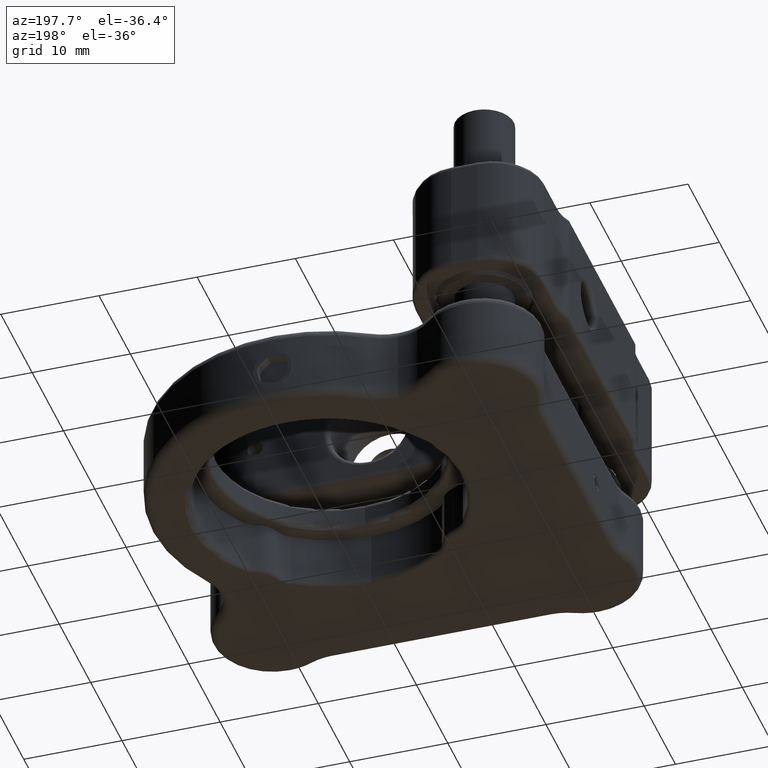
[diagram: clean part render]
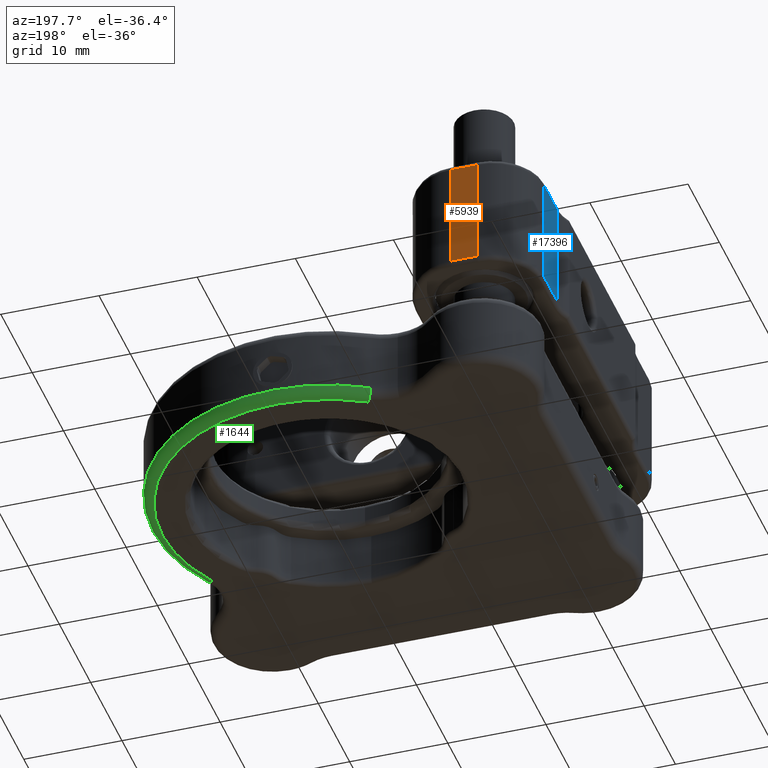
[diagram: same view with three faces highlighted in distinct colors, each labeled with its STEP entity id]
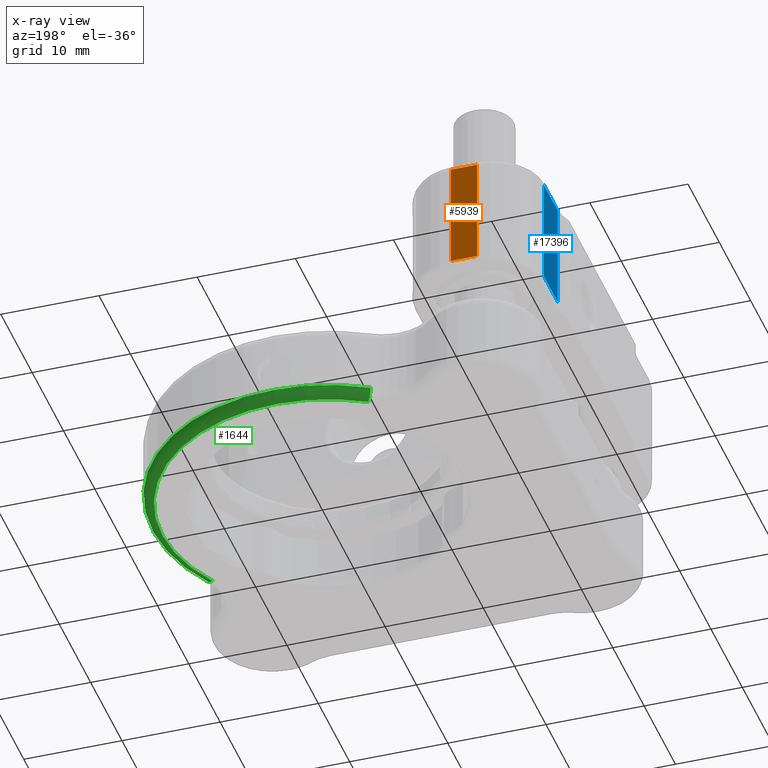
[diagram: x-ray of the same camera — body ghosted, the three highlighted faces saturated]
A machine part, auxiliary view with three faces highlighted in distinct colors.
The next image is the same camera in x-ray (body ghosted, the three faces saturated) — at least one of them is partly hidden behind the body in this view.
Their STEP definitions:

[orange] entity #5939 — the highlighted planar face has unit normal (0, 1, -0).
#704 = DIRECTION ( 'NONE',  ( -1.533343436975556800E-017, 8.970190802864523500E-017, 1.000000000000000000 ) ) ;
#1254 = EDGE_CURVE ( 'NONE', #5348, #8624, #12071, .T. ) ;
#1510 = AXIS2_PLACEMENT_3D ( 'NONE', #16657, #6499, #18357 ) ;
#2843 = CARTESIAN_POINT ( 'NONE',  ( -1.322875655532277600, 37.50000000000001400, -5.500000000000001800 ) ) ;
#2976 = ORIENTED_EDGE ( 'NONE', *, *, #3451, .T. ) ;
#3149 = LINE ( 'NONE', #7468, #20123 ) ;
#3451 = EDGE_CURVE ( 'NONE', #16374, #11230, #18480, .T. ) ;
#3831 = EDGE_LOOP ( 'NONE', ( #7144, #20804, #10669, #2976 ) ) ;
#4483 = DIRECTION ( 'NONE',  ( 1.000000000000000000, -4.228827026381210000E-016, 1.367518413995532800E-032 ) ) ;
#5192 = FACE_OUTER_BOUND ( 'NONE', #3831, .T. ) ;
#5348 = VERTEX_POINT ( 'NONE', #6132 ) ;
#5939 = ADVANCED_FACE ( 'NONE', ( #5192 ), #6424, .T. ) ;
#6132 = CARTESIAN_POINT ( 'NONE',  ( -1.322875655532277600, 37.50000000000001400, 5.499999999999998200 ) ) ;
#6424 = PLANE ( 'NONE',  #1510 ) ;
#6499 = DIRECTION ( 'NONE',  ( 4.228827026381210000E-016, 1.000000000000000000, -4.632058481800215900E-017 ) ) ;
#7144 = ORIENTED_EDGE ( 'NONE', *, *, #7942, .T. ) ;
#7468 = CARTESIAN_POINT ( 'NONE',  ( -1.322875655532277600, 37.50000000000001400, 5.999999999999998200 ) ) ;
#7555 = VECTOR ( 'NONE', #4483, 1000.000000000000000 ) ;
#7942 = EDGE_CURVE ( 'NONE', #11230, #5348, #3149, .T. ) ;
#7965 = CARTESIAN_POINT ( 'NONE',  ( 1.322875655532281600, 37.50000000000001400, -5.500000000000001800 ) ) ;
#8624 = VERTEX_POINT ( 'NONE', #18569 ) ;
#9583 = CARTESIAN_POINT ( 'NONE',  ( 1.322875655532282000, 37.50000000000001400, 5.499999999999998200 ) ) ;
#10669 = ORIENTED_EDGE ( 'NONE', *, *, #12674, .T. ) ;
#10890 = VECTOR ( 'NONE', #17083, 1000.000000000000000 ) ;
#11230 = VERTEX_POINT ( 'NONE', #2843 ) ;
#11911 = CARTESIAN_POINT ( 'NONE',  ( 1.322875655532281600, 37.50000000000001400, -6.000000000000001800 ) ) ;
#12071 = LINE ( 'NONE', #9583, #7555 ) ;
#12674 = EDGE_CURVE ( 'NONE', #8624, #16374, #19945, .T. ) ;
#12714 = DIRECTION ( 'NONE',  ( -1.000000000000000000, 4.228827026381210000E-016, -1.367518413995532800E-032 ) ) ;
#13961 = VECTOR ( 'NONE', #12714, 1000.000000000000000 ) ;
#16374 = VERTEX_POINT ( 'NONE', #7965 ) ;
#16657 = CARTESIAN_POINT ( 'NONE',  ( -7.000000000000047100, 37.50000000000001400, -6.000000000000001800 ) ) ;
#17083 = DIRECTION ( 'NONE',  ( 1.533343436975556800E-017, -8.970190802864523500E-017, -1.000000000000000000 ) ) ;
#17890 = CARTESIAN_POINT ( 'NONE',  ( -7.000000000000047100, 37.50000000000001400, -5.500000000000001800 ) ) ;
#18357 = DIRECTION ( 'NONE',  ( 1.000000000000000000, -4.228827026381210000E-016, 1.367518413995532800E-032 ) ) ;
#18480 = LINE ( 'NONE', #17890, #13961 ) ;
#18569 = CARTESIAN_POINT ( 'NONE',  ( 1.322875655532281600, 37.50000000000001400, 5.499999999999998200 ) ) ;
#19945 = LINE ( 'NONE', #11911, #10890 ) ;
#20123 = VECTOR ( 'NONE', #704, 1000.000000000000000 ) ;
#20804 = ORIENTED_EDGE ( 'NONE', *, *, #1254, .T. ) ;

[blue] entity #17396 — the highlighted planar face has unit normal (1, -0, 0).
#112 = CARTESIAN_POINT ( 'NONE',  ( -6.500000000000021300, 25.75000000000001400, 5.499999999999999100 ) ) ;
#558 = PLANE ( 'NONE',  #4591 ) ;
#1408 = EDGE_CURVE ( 'NONE', #2662, #20735, #6526, .T. ) ;
#1815 = DIRECTION ( 'NONE',  ( -2.352032944881132500E-049, 1.000000000000000000, -4.632058481800215900E-017 ) ) ;
#1992 = VECTOR ( 'NONE', #21694, 1000.000000000000000 ) ;
#2571 = EDGE_CURVE ( 'NONE', #10051, #2662, #8438, .T. ) ;
#2662 = VERTEX_POINT ( 'NONE', #9746 ) ;
#2793 = DIRECTION ( 'NONE',  ( 1.533343436975556800E-017, -8.970190802864523500E-017, -1.000000000000000000 ) ) ;
#2862 = VERTEX_POINT ( 'NONE', #18856 ) ;
#4591 = AXIS2_PLACEMENT_3D ( 'NONE', #7397, #19253, #9072 ) ;
#5676 = ORIENTED_EDGE ( 'NONE', *, *, #2571, .T. ) ;
#6253 = CARTESIAN_POINT ( 'NONE',  ( -6.500000000000021300, 27.92944947177034700, 5.999999999999999100 ) ) ;
#6526 = LINE ( 'NONE', #11451, #1992 ) ;
#6817 = FACE_OUTER_BOUND ( 'NONE', #20349, .T. ) ;
#7397 = CARTESIAN_POINT ( 'NONE',  ( -6.500000000000021300, 25.75000000000001400, 5.999999999999999100 ) ) ;
#7919 = VECTOR ( 'NONE', #2793, 1000.000000000000000 ) ;
#8438 = LINE ( 'NONE', #14819, #7919 ) ;
#8551 = ORIENTED_EDGE ( 'NONE', *, *, #1408, .T. ) ;
#9072 = DIRECTION ( 'NONE',  ( -1.533343436975556800E-017, 8.970190802864523500E-017, 1.000000000000000000 ) ) ;
#9245 = LINE ( 'NONE', #6253, #13785 ) ;
#9625 = LINE ( 'NONE', #112, #18124 ) ;
#9746 = CARTESIAN_POINT ( 'NONE',  ( -6.500000000000021300, 32.32287565553227200, -5.500000000000001800 ) ) ;
#10051 = VERTEX_POINT ( 'NONE', #10529 ) ;
#10529 = CARTESIAN_POINT ( 'NONE',  ( -6.500000000000021300, 32.32287565553227200, 5.499999999999998200 ) ) ;
#11226 = EDGE_CURVE ( 'NONE', #20735, #2862, #9245, .T. ) ;
#11451 = CARTESIAN_POINT ( 'NONE',  ( -6.500000000000021300, 27.92944947177034700, -5.500000000000000900 ) ) ;
#12756 = ORIENTED_EDGE ( 'NONE', *, *, #11226, .T. ) ;
#13785 = VECTOR ( 'NONE', #17123, 1000.000000000000000 ) ;
#14046 = ORIENTED_EDGE ( 'NONE', *, *, #18490, .T. ) ;
#14819 = CARTESIAN_POINT ( 'NONE',  ( -6.500000000000021300, 32.32287565553227200, 5.999999999999998200 ) ) ;
#17055 = CARTESIAN_POINT ( 'NONE',  ( -6.500000000000021300, 27.92944947177034700, -5.500000000000000900 ) ) ;
#17123 = DIRECTION ( 'NONE',  ( -1.533343436975556800E-017, 8.970190802864523500E-017, 1.000000000000000000 ) ) ;
#17396 = ADVANCED_FACE ( 'NONE', ( #6817 ), #558, .F. ) ;
#18124 = VECTOR ( 'NONE', #1815, 1000.000000000000000 ) ;
#18490 = EDGE_CURVE ( 'NONE', #2862, #10051, #9625, .T. ) ;
#18856 = CARTESIAN_POINT ( 'NONE',  ( -6.500000000000021300, 27.92944947177034700, 5.499999999999999100 ) ) ;
#19253 = DIRECTION ( 'NONE',  ( 1.000000000000000000, -1.110223024625156300E-016, 1.533343436975557800E-017 ) ) ;
#20349 = EDGE_LOOP ( 'NONE', ( #12756, #14046, #5676, #8551 ) ) ;
#20735 = VERTEX_POINT ( 'NONE', #17055 ) ;
#21694 = DIRECTION ( 'NONE',  ( 2.352032944881132500E-049, -1.000000000000000000, 4.632058481800215900E-017 ) ) ;

[green] entity #1644 — the highlighted toroidal blend (fillet) surface has major radius 17 mm and minor (blend) radius 1 mm.
#291 = ORIENTED_EDGE ( 'NONE', *, *, #9902, .F. ) ;
#1644 = ADVANCED_FACE ( 'NONE', ( #5675 ), #17602, .T. ) ;
#1780 = VERTEX_POINT ( 'NONE', #11114 ) ;
#1892 = AXIS2_PLACEMENT_3D ( 'NONE', #17767, #7620, #19462 ) ;
#2663 = EDGE_CURVE ( 'NONE', #8775, #16690, #17706, .T. ) ;
#3165 = CARTESIAN_POINT ( 'NONE',  ( 10.83108220009719800, 34.12360640124473600, -17.00000000000000400 ) ) ;
#3321 = AXIS2_PLACEMENT_3D ( 'NONE', #3165, #15040, #4857 ) ;
#4857 = DIRECTION ( 'NONE',  ( 0.5099363411707564800, -0.8602121412496931400, 0.0000000000000000000 ) ) ;
#5064 = DIRECTION ( 'NONE',  ( 0.5099363411707597000, 0.8602121412496912500, 4.775136626387579200E-017 ) ) ;
#5344 = CARTESIAN_POINT ( 'NONE',  ( 19.50000000000002500, 19.49999999999992500, -18.00000000000000700 ) ) ;
#5675 = FACE_OUTER_BOUND ( 'NONE', #6247, .T. ) ;
#6247 = EDGE_LOOP ( 'NONE', ( #7957, #291, #19078, #15267 ) ) ;
#6288 = AXIS2_PLACEMENT_3D ( 'NONE', #12452, #9089, #20981 ) ;
#7055 = DIRECTION ( 'NONE',  ( -2.244936263028809800E-015, -1.000000000000000000, 0.0000000000000000000 ) ) ;
#7620 = DIRECTION ( 'NONE',  ( -0.0000000000000000000, 2.775557561562892000E-017, 1.000000000000000000 ) ) ;
#7839 = AXIS2_PLACEMENT_3D ( 'NONE', #15245, #5064, #16937 ) ;
#7957 = ORIENTED_EDGE ( 'NONE', *, *, #16551, .T. ) ;
#8775 = VERTEX_POINT ( 'NONE', #12178 ) ;
#9089 = DIRECTION ( 'NONE',  ( 0.0000000000000000000, -2.775557561562892000E-017, -1.000000000000000000 ) ) ;
#9469 = CIRCLE ( 'NONE', #7839, 1.000000000000000000 ) ;
#9902 = EDGE_CURVE ( 'NONE', #16690, #21232, #18423, .T. ) ;
#9991 = CARTESIAN_POINT ( 'NONE',  ( 34.12360640124477800, 10.83108220009703100, -18.00000000000000700 ) ) ;
#10116 = CIRCLE ( 'NONE', #1892, 18.00000000000000000 ) ;
#10738 = EDGE_CURVE ( 'NONE', #1780, #8775, #10116, .T. ) ;
#11114 = CARTESIAN_POINT ( 'NONE',  ( 34.98381854249446800, 10.32114585892626700, -17.00000000000000400 ) ) ;
#12178 = CARTESIAN_POINT ( 'NONE',  ( 10.32114585892644100, 34.98381854249442600, -17.00000000000000400 ) ) ;
#12452 = CARTESIAN_POINT ( 'NONE',  ( 19.50000000000002500, 19.49999999999992500, -17.00000000000000400 ) ) ;
#15040 = DIRECTION ( 'NONE',  ( -0.8602121412496934700, -0.5099363411707558100, -2.830715335304422400E-017 ) ) ;
#15245 = CARTESIAN_POINT ( 'NONE',  ( 34.12360640124477800, 10.83108220009702700, -17.00000000000000400 ) ) ;
#15267 = ORIENTED_EDGE ( 'NONE', *, *, #10738, .F. ) ;
#15449 = CARTESIAN_POINT ( 'NONE',  ( 10.83108220009720100, 34.12360640124473600, -18.00000000000000400 ) ) ;
#16551 = EDGE_CURVE ( 'NONE', #1780, #21232, #9469, .T. ) ;
#16690 = VERTEX_POINT ( 'NONE', #15449 ) ;
#16937 = DIRECTION ( 'NONE',  ( -0.8602121412496915900, 0.5099363411707590300, 0.0000000000000000000 ) ) ;
#17209 = DIRECTION ( 'NONE',  ( 0.0000000000000000000, -2.775557561562892000E-017, -1.000000000000000000 ) ) ;
#17602 = TOROIDAL_SURFACE ( 'NONE', #6288, 16.99999999999999600, 1.000000000000000000 ) ;
#17706 = CIRCLE ( 'NONE', #3321, 0.9999999999999982200 ) ;
#17767 = CARTESIAN_POINT ( 'NONE',  ( 19.50000000000002500, 19.49999999999992500, -17.00000000000000400 ) ) ;
#18067 = AXIS2_PLACEMENT_3D ( 'NONE', #5344, #17209, #7055 ) ;
#18423 = CIRCLE ( 'NONE', #18067, 16.99999999999999600 ) ;
#19078 = ORIENTED_EDGE ( 'NONE', *, *, #2663, .F. ) ;
#19462 = DIRECTION ( 'NONE',  ( -2.312964634635742700E-015, -1.000000000000000000, 0.0000000000000000000 ) ) ;
#20981 = DIRECTION ( 'NONE',  ( -2.312964634635743100E-015, -1.000000000000000000, 2.775557561562892000E-017 ) ) ;
#21232 = VERTEX_POINT ( 'NONE', #9991 ) ;